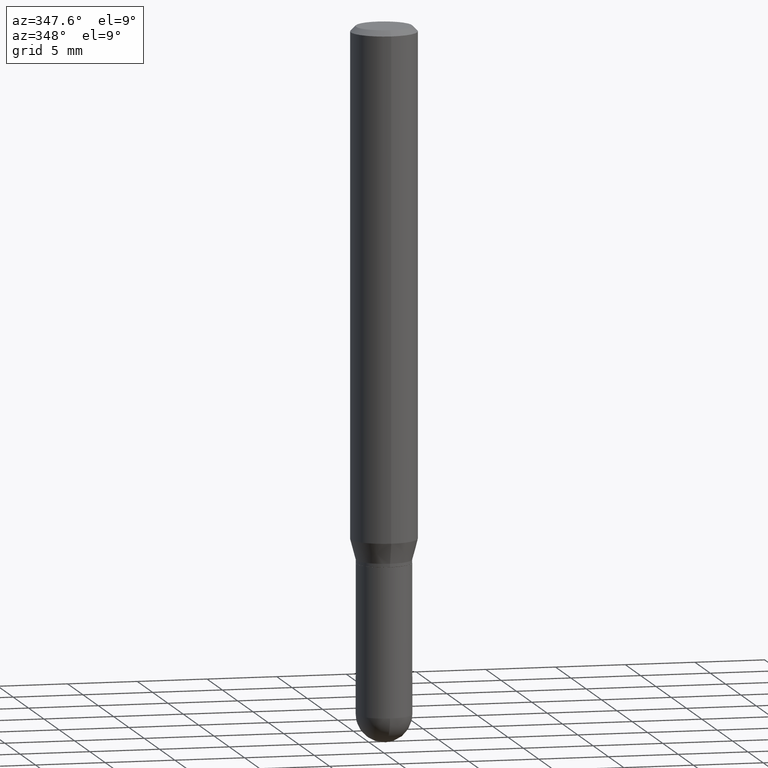
[diagram: clean part render]
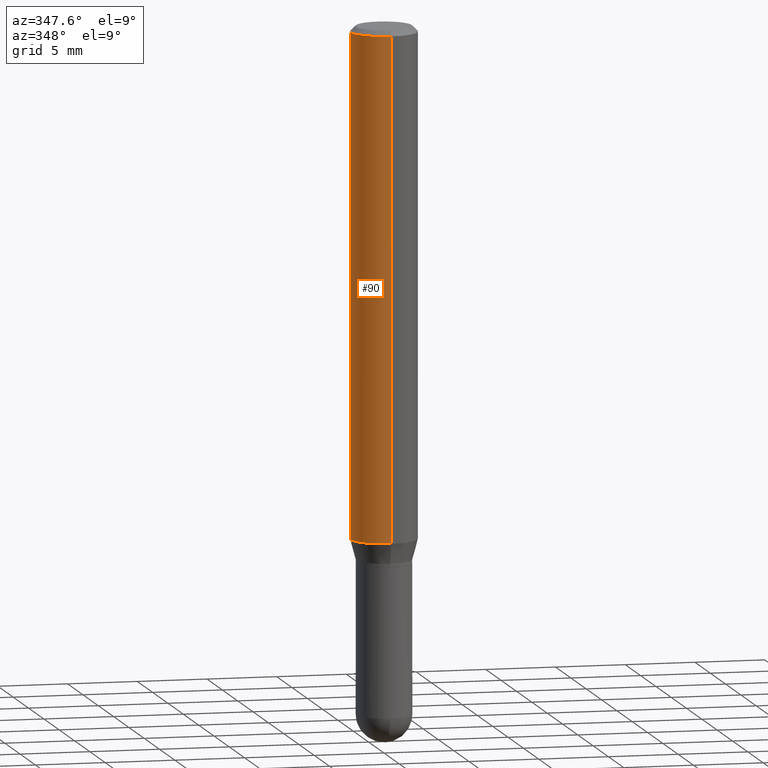
[diagram: same view with one face highlighted and labeled with its STEP entity id]
A machine part, auxiliary view. The second image highlights one B-rep face of the part: STEP entity #90.
In plain terms, the highlighted cylindrical surface (edge-blend (fillet) strip) has radius 2.3813 mm, axis along (-0, 0, 1).
Its self-contained STEP definition (entity closure, byte-faithful):
#4 = CARTESIAN_POINT ( 'NONE',  ( -6.546527510330875041E-16, -0.09375000000000001388, 3.273862860613314496E-16 ) ) ;
#10 = CIRCLE ( 'NONE', #302, 0.09375000000000001388 ) ;
#34 = CYLINDRICAL_SURFACE ( 'NONE', #235, 0.09375000000000001388 ) ;
#52 = DIRECTION ( 'NONE',  ( -2.445022562880342820E-29, 3.492120384654201603E-15, 1.000000000000000000 ) ) ;
#58 = CARTESIAN_POINT ( 'NONE',  ( 6.661338147751288313E-16, 0.09374999999999500400, -1.431593404861545960 ) ) ;
#72 = DIRECTION ( 'NONE',  ( -2.445022562880343100E-29, 3.492120384654201603E-15, 1.000000000000000000 ) ) ;
#77 = EDGE_LOOP ( 'NONE', ( #134, #146, #139, #406 ) ) ;
#85 = CARTESIAN_POINT ( 'NONE',  ( 6.661338147751291272E-16, 0.09374999999999995837, -0.01500000000000030476 ) ) ;
#90 = ADVANCED_FACE ( 'NONE', ( #466 ), #34, .T. ) ;
#105 = EDGE_CURVE ( 'NONE', #300, #290, #434, .T. ) ;
#125 = DIRECTION ( 'NONE',  ( -6.982962677686265922E-15, -1.000000000000000000, 2.913971193241880372E-15 ) ) ;
#134 = ORIENTED_EDGE ( 'NONE', *, *, #178, .F. ) ;
#139 = ORIENTED_EDGE ( 'NONE', *, *, #105, .T. ) ;
#146 = ORIENTED_EDGE ( 'NONE', *, *, #480, .T. ) ;
#178 = EDGE_CURVE ( 'NONE', #276, #221, #393, .T. ) ;
#221 = VERTEX_POINT ( 'NONE', #85 ) ;
#235 = AXIS2_PLACEMENT_3D ( 'NONE', #279, #318, #360 ) ;
#276 = VERTEX_POINT ( 'NONE', #58 ) ;
#279 = CARTESIAN_POINT ( 'NONE',  ( 0.000000000000000000, 0.000000000000000000, 0.000000000000000000 ) ) ;
#286 = VECTOR ( 'NONE', #52, 39.37007874015748143 ) ;
#290 = VERTEX_POINT ( 'NONE', #415 ) ;
#300 = VERTEX_POINT ( 'NONE', #409 ) ;
#301 = VECTOR ( 'NONE', #391, 39.37007874015748143 ) ;
#302 = AXIS2_PLACEMENT_3D ( 'NONE', #473, #72, #125 ) ;
#318 = DIRECTION ( 'NONE',  ( -2.445022562880343100E-29, 3.492120384654201603E-15, 1.000000000000000000 ) ) ;
#347 = DIRECTION ( 'NONE',  ( -2.445022562880343100E-29, 3.492120384654201603E-15, 1.000000000000000000 ) ) ;
#360 = DIRECTION ( 'NONE',  ( -6.982962677686265922E-15, -1.000000000000000000, 3.492120384654201603E-15 ) ) ;
#390 = CARTESIAN_POINT ( 'NONE',  ( 3.667533844320509501E-31, -5.238180576981294836E-17, -0.01499999999999997863 ) ) ;
#391 = DIRECTION ( 'NONE',  ( -2.445022562880342820E-29, 3.492120384654201603E-15, 1.000000000000000000 ) ) ;
#393 = LINE ( 'NONE', #402, #286 ) ;
#402 = CARTESIAN_POINT ( 'NONE',  ( 6.661338147750938256E-16, 0.09375000000000001388, -3.273862860613314496E-16 ) ) ;
#406 = ORIENTED_EDGE ( 'NONE', *, *, #502, .F. ) ;
#409 = CARTESIAN_POINT ( 'NONE',  ( -6.546527510330523012E-16, -0.09375000000000500988, -1.431593404861545515 ) ) ;
#415 = CARTESIAN_POINT ( 'NONE',  ( -6.546527510330871097E-16, -0.09375000000000005551, -0.01499999999999965250 ) ) ;
#423 = DIRECTION ( 'NONE',  ( -6.982962677686265922E-15, -1.000000000000000000, 3.483106191921935160E-15 ) ) ;
#434 = LINE ( 'NONE', #4, #301 ) ;
#445 = CIRCLE ( 'NONE', #452, 0.09375000000000001388 ) ;
#452 = AXIS2_PLACEMENT_3D ( 'NONE', #390, #347, #423 ) ;
#466 = FACE_OUTER_BOUND ( 'NONE', #77, .T. ) ;
#473 = CARTESIAN_POINT ( 'NONE',  ( 3.500278175757173363E-29, -4.999296511653519155E-15, -1.431593404861545737 ) ) ;
#480 = EDGE_CURVE ( 'NONE', #276, #300, #10, .T. ) ;
#502 = EDGE_CURVE ( 'NONE', #221, #290, #445, .T. ) ;